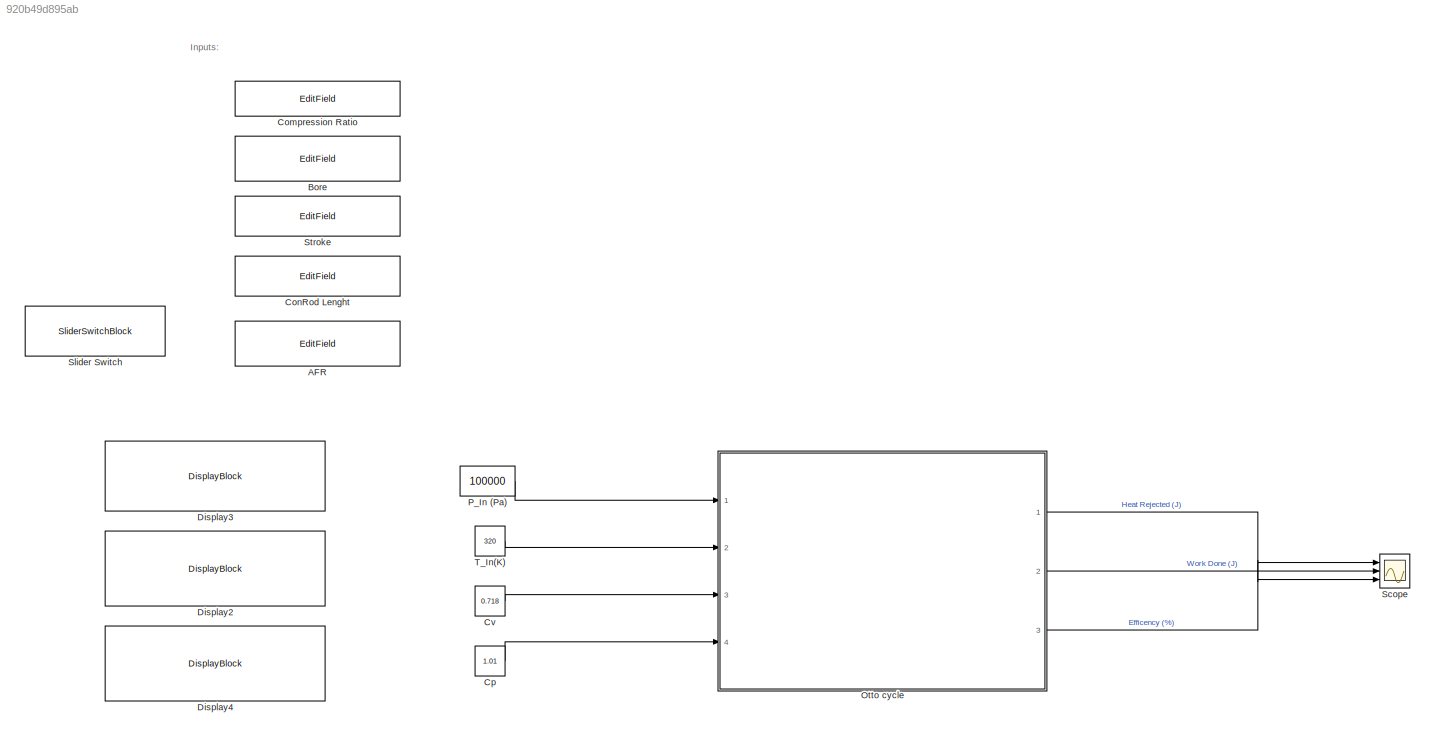
MODEL slx_920b49d895ab
KIND model
CONFIG AbsTol = auto
CONFIG EnableMultiTasking = off
CONFIG FixedStep = auto
CONFIG MaxStep = auto
CONFIG MinStep = auto
CONFIG RelTol = 1e-3
CONFIG SampleTimeConstraint = Unconstrained
CONFIG Solver = VariableStepAuto
CONFIG SolverName = VariableStepAuto
CONFIG StartTime = 0.0
CONFIG StopTime = 0
BLOCK [EditField] AFR
  Alignment = Center
  LabelPosition = Hide
  WebBlockId = 118
BLOCK [EditField] Bore
  Alignment = Center
  LabelPosition = Hide
  WebBlockId = 61
BLOCK [EditField] Compression Ratio 
  Alignment = Center
  LabelPosition = Hide
  WebBlockId = 60
BLOCK [EditField] ConRod Lenght
  Alignment = Center
  LabelPosition = Hide
  WebBlockId = 93
BLOCK [Constant] Cp 
  Value = 1.01
BLOCK [Constant] Cv
  Value = 0.718
BLOCK [DisplayBlock] Display2
  WebBlockId = 86
BLOCK [DisplayBlock] Display3
  WebBlockId = 87
BLOCK [DisplayBlock] Display4
  WebBlockId = 88
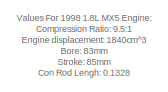
[diagram: Otto cycle  - part 1/3, top right region]
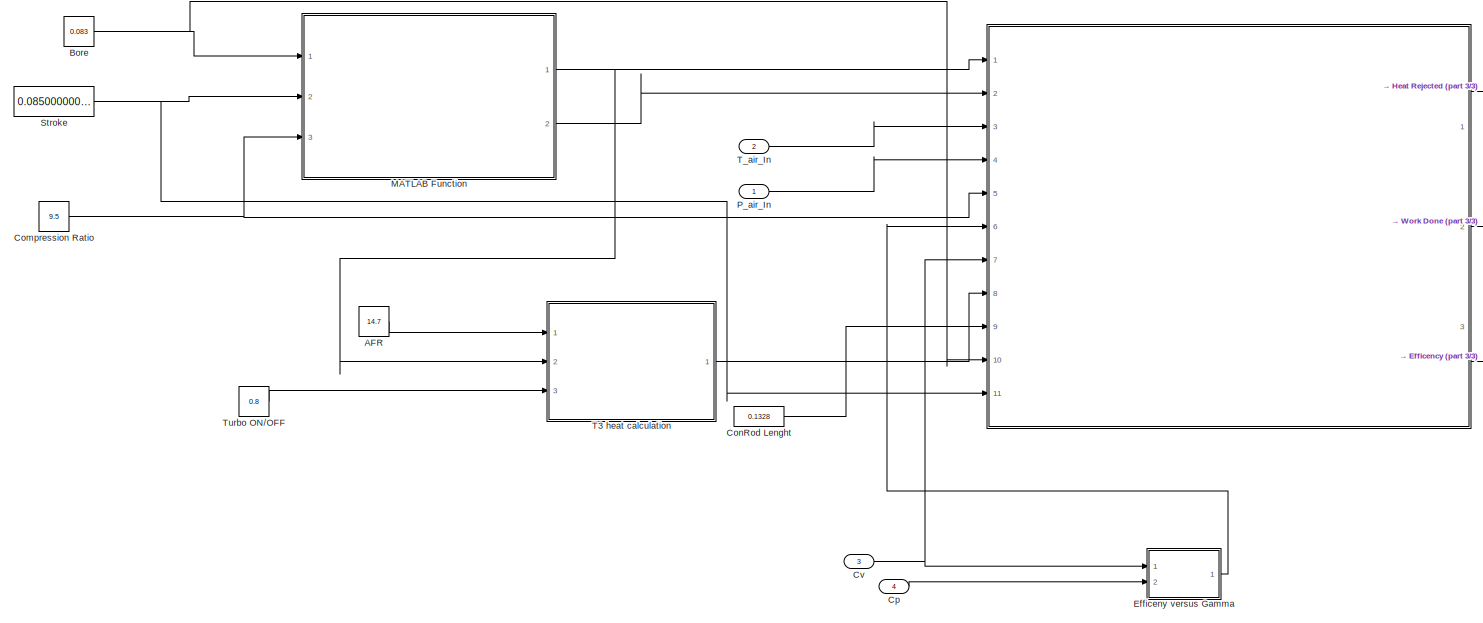
[diagram: Otto cycle  - part 2/3, most of the canvas]
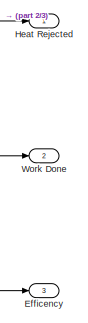
[diagram: Otto cycle  - part 3/3, middle right region]
BLOCK [SubSystem] Otto cycle 
  Ports = [4, 3]
  RequestExecContextInheritance = off
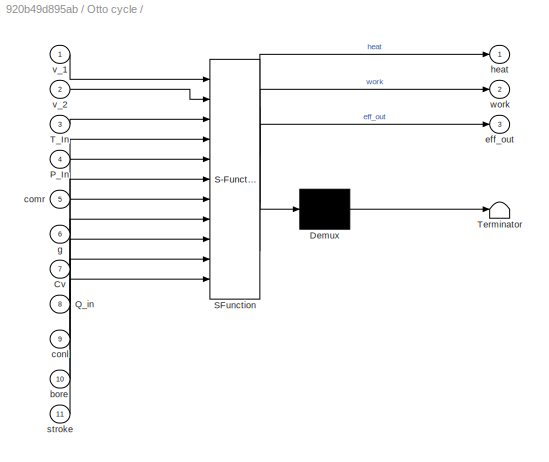
BLOCK [SubSystem] Otto cycle / 
  ErrorFcn = Stateflow.Translate.translate
  PermitHierarchicalResolution = ExplicitOnly
  Ports = [11, 3]
  RequestExecContextInheritance = off
  SFBlockType = MATLAB Function
  TreatAsAtomicUnit = on
BLOCK [Demux] Otto cycle / / Demux 
  Outputs = 1
  Ports = [1, 1]
BLOCK [S-Function] Otto cycle / / SFunction 
  EnableBusSupport = on
  FunctionName = sf_sfun
  PortCounts = [11 4]
  Ports = [11, 4]
  SFcnIsStateOwnerBlock = off
  SFunctionDeploymentMode = off
  Tag = Stateflow S-Function OttoCycle 2
BLOCK [Terminator] Otto cycle / / Terminator 
BLOCK [Inport] Otto cycle / /Cv
  IconDisplay = Port number
  Port = 7
BLOCK [Inport] Otto cycle / /P_In
  IconDisplay = Port number
  Port = 4
BLOCK [Inport] Otto cycle / /Q_in
  IconDisplay = Port number
  Port = 8
BLOCK [Inport] Otto cycle / /T_In
  IconDisplay = Port number
  Port = 3
BLOCK [Inport] Otto cycle / /bore
  IconDisplay = Port number
  Port = 10
BLOCK [Inport] Otto cycle / /comr
  IconDisplay = Port number
  Port = 5
BLOCK [Inport] Otto cycle / /conl
  IconDisplay = Port number
  Port = 9
BLOCK [Outport] Otto cycle / /eff_out
  IconDisplay = Port number
  Port = 3
BLOCK [Inport] Otto cycle / /g
  IconDisplay = Port number
  Port = 6
BLOCK [Outport] Otto cycle / /heat
  IconDisplay = Port number
BLOCK [Inport] Otto cycle / /stroke
  IconDisplay = Port number
  Port = 11
BLOCK [Inport] Otto cycle / /v_1
  IconDisplay = Port number
BLOCK [Inport] Otto cycle / /v_2
  IconDisplay = Port number
  Port = 2
BLOCK [Outport] Otto cycle / /work
  IconDisplay = Port number
  Port = 2
BLOCK [Constant] Otto cycle /AFR
  Value = 14.7
  VectorParams1D = off
BLOCK [Constant] Otto cycle /Bore 
  Value = 0.083
BLOCK [Constant] Otto cycle /Compression Ratio 
  Value = 9.5
BLOCK [Constant] Otto cycle /ConRod Lenght
  Value = 0.1328
BLOCK [Inport] Otto cycle /Cp 
  IconDisplay = Port number
  Port = 4
BLOCK [Inport] Otto cycle /Cv
  IconDisplay = Port number
  Port = 3
BLOCK [Outport] Otto cycle /Efficency
  IconDisplay = Port number
  Port = 3
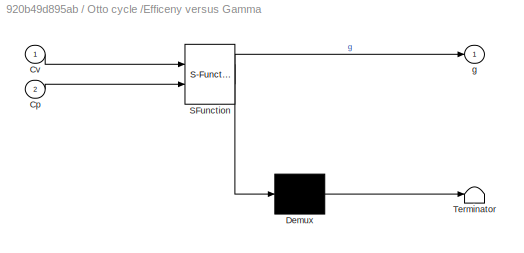
BLOCK [SubSystem] Otto cycle /Efficeny versus Gamma 
  ErrorFcn = Stateflow.Translate.translate
  PermitHierarchicalResolution = ExplicitOnly
  Ports = [2, 1]
  RequestExecContextInheritance = off
  SFBlockType = MATLAB Function
  TreatAsAtomicUnit = on
BLOCK [Demux] Otto cycle /Efficeny versus Gamma / Demux 
  Outputs = 1
  Ports = [1, 1]
BLOCK [S-Function] Otto cycle /Efficeny versus Gamma / SFunction 
  EnableBusSupport = on
  FunctionName = sf_sfun
  PortCounts = [2 2]
  Ports = [2, 2]
  SFcnIsStateOwnerBlock = off
  SFunctionDeploymentMode = off
  Tag = Stateflow S-Function OttoCycle 1
BLOCK [Terminator] Otto cycle /Efficeny versus Gamma / Terminator 
BLOCK [Inport] Otto cycle /Efficeny versus Gamma /Cp
  IconDisplay = Port number
  Port = 2
BLOCK [Inport] Otto cycle /Efficeny versus Gamma /Cv
  IconDisplay = Port number
BLOCK [Outport] Otto cycle /Efficeny versus Gamma /g
  IconDisplay = Port number
BLOCK [Outport] Otto cycle /Heat Rejected 
  IconDisplay = Port number
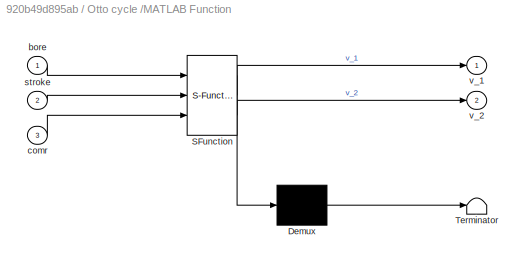
BLOCK [SubSystem] Otto cycle /MATLAB Function
  ErrorFcn = Stateflow.Translate.translate
  PermitHierarchicalResolution = ExplicitOnly
  Ports = [3, 2]
  RequestExecContextInheritance = off
  SFBlockType = MATLAB Function
  TreatAsAtomicUnit = on
BLOCK [Demux] Otto cycle /MATLAB Function/ Demux 
  Outputs = 1
  Ports = [1, 1]
BLOCK [S-Function] Otto cycle /MATLAB Function/ SFunction 
  EnableBusSupport = on
  FunctionName = sf_sfun
  PortCounts = [3 3]
  Ports = [3, 3]
  SFcnIsStateOwnerBlock = off
  SFunctionDeploymentMode = off
  Tag = Stateflow S-Function OttoCycle 6
BLOCK [Terminator] Otto cycle /MATLAB Function/ Terminator 
BLOCK [Inport] Otto cycle /MATLAB Function/bore
  IconDisplay = Port number
BLOCK [Inport] Otto cycle /MATLAB Function/comr
  IconDisplay = Port number
  Port = 3
BLOCK [Inport] Otto cycle /MATLAB Function/stroke
  IconDisplay = Port number
  Port = 2
BLOCK [Outport] Otto cycle /MATLAB Function/v_1
  IconDisplay = Port number
BLOCK [Outport] Otto cycle /MATLAB Function/v_2
  IconDisplay = Port number
  Port = 2
BLOCK [Inport] Otto cycle /P_air_In 
  IconDisplay = Port number
BLOCK [Constant] Otto cycle /Stroke 
  Value = 0.08500000000000001
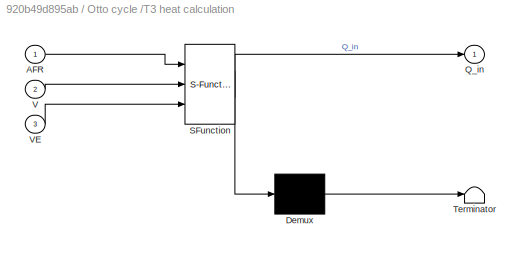
BLOCK [SubSystem] Otto cycle /T3 heat calculation 
  ErrorFcn = Stateflow.Translate.translate
  PermitHierarchicalResolution = ExplicitOnly
  Ports = [3, 1]
  RequestExecContextInheritance = off
  SFBlockType = MATLAB Function
  TreatAsAtomicUnit = on
BLOCK [Demux] Otto cycle /T3 heat calculation / Demux 
  Outputs = 1
  Ports = [1, 1]
BLOCK [S-Function] Otto cycle /T3 heat calculation / SFunction 
  EnableBusSupport = on
  FunctionName = sf_sfun
  PortCounts = [3 2]
  Ports = [3, 2]
  SFcnIsStateOwnerBlock = off
  SFunctionDeploymentMode = off
  Tag = Stateflow S-Function OttoCycle 5
BLOCK [Terminator] Otto cycle /T3 heat calculation / Terminator 
BLOCK [Inport] Otto cycle /T3 heat calculation /AFR
  IconDisplay = Port number
BLOCK [Outport] Otto cycle /T3 heat calculation /Q_in
  IconDisplay = Port number
BLOCK [Inport] Otto cycle /T3 heat calculation /V
  IconDisplay = Port number
  Port = 2
BLOCK [Inport] Otto cycle /T3 heat calculation /VE
  IconDisplay = Port number
  Port = 3
BLOCK [Inport] Otto cycle /T_air_In 
  IconDisplay = Port number
  Port = 2
BLOCK [Constant] Otto cycle /Turbo ON//OFF 
  Value = 0.8
BLOCK [Outport] Otto cycle /Work Done
  IconDisplay = Port number
  Port = 2
BLOCK [Constant] P_In (Pa) 
  Value = 100000
BLOCK [Scope] Scope
  Floating = off
  NumInputPorts = 3
  Ports = [3]
  ScopeSpecificationString = Simulink.scopes.TimeScopeBlockCfg('CurrentConfiguration', extmgr.ConfigurationSet(extmgr.Configuration('Core','General UI',true),extmgr.Configuration('Core','Source UI',true),extmgr.Configuration('Sources','WiredSimulink',true),extmgr.Configuration('Visuals','Time Domain',true,'SerializedDisplays',{struct('MinYLimReal','-224.39999','MaxYLimReal','2619.31034','YLabelReal','','MinYLimMag',' 0.00000'...<+1387ch>
BLOCK [SliderSwitchBlock] Slider Switch
  WebBlockId = 121
BLOCK [EditField] Stroke 
  Alignment = Center
  LabelPosition = Hide
  WebBlockId = 62
BLOCK [Constant] T_In(K) 
  Value = 320
ANNOTATION (root): Inputs:
ANNOTATION Otto cycle : Values For 1998 1.8L MX5 Engine: Compression Ratio: 9.5:1 Engine displacement: 1840cm^3 Bore: 83mm Stroke: 85mm Con Rod Lengh: 0.1328
LINE Cp :1 -> Otto cycle :4
LINE Cv:1 -> Otto cycle :3
LINE Otto cycle / :1 -> Otto cycle /Heat Rejected :1
LINE Otto cycle / :2 -> Otto cycle /Work Done:1
LINE Otto cycle / :3 -> Otto cycle /Efficency:1
LINE Otto cycle /AFR:1 -> Otto cycle /T3 heat calculation :1
NET Otto cycle /Bore :1 -> Otto cycle / :10, Otto cycle /MATLAB Function:1
NET Otto cycle /Compression Ratio :1 -> Otto cycle / :5, Otto cycle /MATLAB Function:3
LINE Otto cycle /ConRod Lenght:1 -> Otto cycle / :9
LINE Otto cycle /Cp :1 -> Otto cycle /Efficeny versus Gamma :2
NET Otto cycle /Cv:1 -> Otto cycle / :7, Otto cycle /Efficeny versus Gamma :1
LINE Otto cycle /Efficeny versus Gamma :1 -> Otto cycle / :6
NET Otto cycle /MATLAB Function:1 -> Otto cycle / :1, Otto cycle /T3 heat calculation :2
LINE Otto cycle /MATLAB Function:2 -> Otto cycle / :2
LINE Otto cycle /P_air_In :1 -> Otto cycle / :4
NET Otto cycle /Stroke :1 -> Otto cycle / :11, Otto cycle /MATLAB Function:2
LINE Otto cycle /T3 heat calculation :1 -> Otto cycle / :8
LINE Otto cycle /T_air_In :1 -> Otto cycle / :3
LINE Otto cycle /Turbo ON//OFF :1 -> Otto cycle /T3 heat calculation :3
LINE Otto cycle :1 -> Scope:1
LINE Otto cycle :2 -> Scope:2
LINE Otto cycle :3 -> Scope:3
LINE P_In (Pa) :1 -> Otto cycle :1
LINE T_In(K) :1 -> Otto cycle :2
note: NET lines group one-source signal fan-out (src -> all destinations, sorted); 1:1 wires keep LINE
CHART Otto cycle 
/Efficeny versus Gamma
 states=1 transitions=1
  STATE_LABEL 'eML_blk_kernel()'
  STATE_LABEL "SCRIPT:\nfunction g = fcn(Cv,Cp)\nr1 = 1:1:10;\ng1 = 1.5;\ng2 = 1.4;\ng3 = 1.3;\ng = Cp/Cv;\ne1 = (1-(1./(r1)).^(g1-1))*100;\ne2 = (1-(1./(r1)).^(g2-1))*100;\ne3 = (1-(1./(r1)).^(g3-1))*100;\ne = (1-(1./(r1)).^(g-1))*100;\n\nfigure(2);\nhold on \nplot(r1,e1,'color','b');\nplot(r1,e2,'color','g');\nplot(r1,e3,'color','r');\nplot(r1,e,'color','black');\nxlabel('Compression Ratio');\nylabel('Efficiency');\ntitle('Theore...<+31ch>"
CHART Otto cycle 
/ 
 states=1 transitions=1
  STATE_LABEL 'eML_blk_kernel()'
  STATE_LABEL 'SCRIPT:\nfunction [heat,work,eff_out] = otto_cycle(v_1,v_2,T_In,P_In,comr,g,Cv,Q_in,conl,bore,stroke)\n\nv_swept = (pi/4)*bore^2*stroke;\nv_clearance = v_swept/(comr-1);\na = stroke/2;\n\n%State 1\np1 = P_In;\nv1 = v_1;\nt1 = T_In;\n\n%State 2 \nv2 = v_2;\np2 = p1*((comr)^g);\nt2 = t1*comr^(g-1);\nc2 = p1*v1^g;\n\n%Piston Kinematics\ntheta = linspace(0,180,100);\nka = conl./sind(theta);\nB_ang = asind(a./ka);\nC_ang = ...<+877ch>'
CHART Otto cycle 
/T3 heat calculation 
 states=1 transitions=1
  STATE_LABEL 'eML_blk_kernel()'
  STATE_LABEL 'SCRIPT:\nfunction Q_in = heatadded(AFR,V,VE)\n\nroh1 = 745;\nroh2 = 1.2;\nVa = AFR/roh2;\nVp = 1/roh1;\nVt = Va + Vp;\nPercentageV = Vp/Vt;\nV_used = V*VE;\nMassFuel = (V_used*PercentageV)*roh1;\nQ_in = 46400000*MassFuel;\n'
CHART Otto cycle 
/MATLAB Function states=1 transitions=1
  STATE_LABEL 'eML_blk_kernel()'
  STATE_LABEL 'SCRIPT:\nfunction [v_1,v_2] = volumeCalc(bore,stroke,comr)\n\nv_swept = (pi/4)*bore^2*stroke;\nv_2 = v_swept/(comr-1);\nv_1 = v_swept + v_2;\n'
